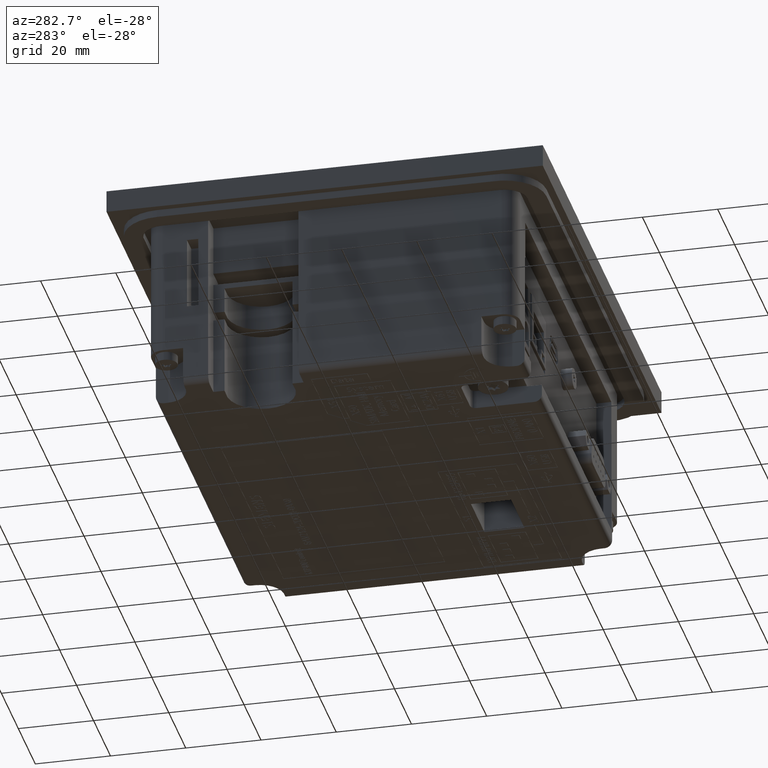
[diagram: clean part render]
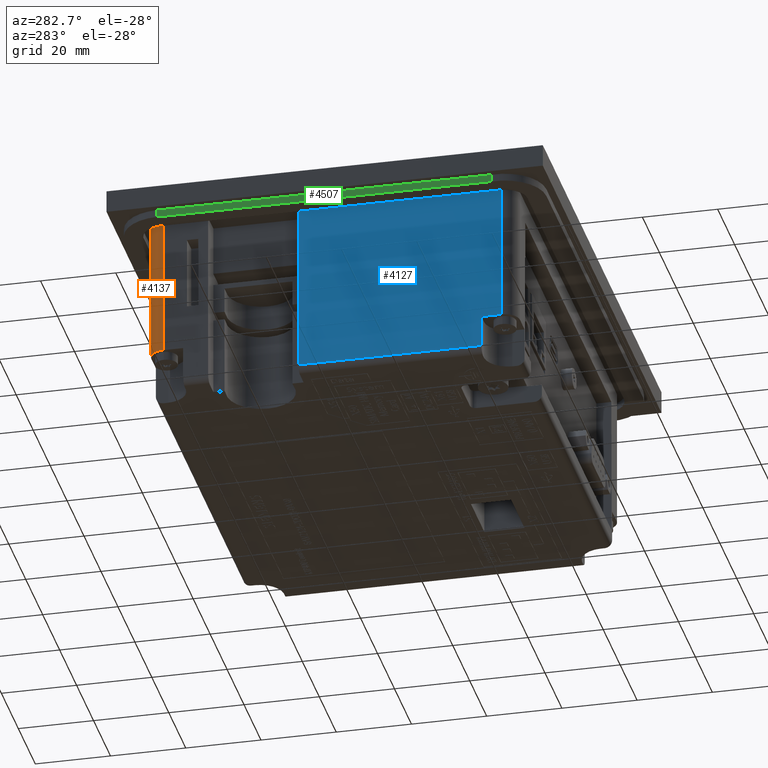
[diagram: same view with three faces highlighted in distinct colors, each labeled with its STEP entity id]
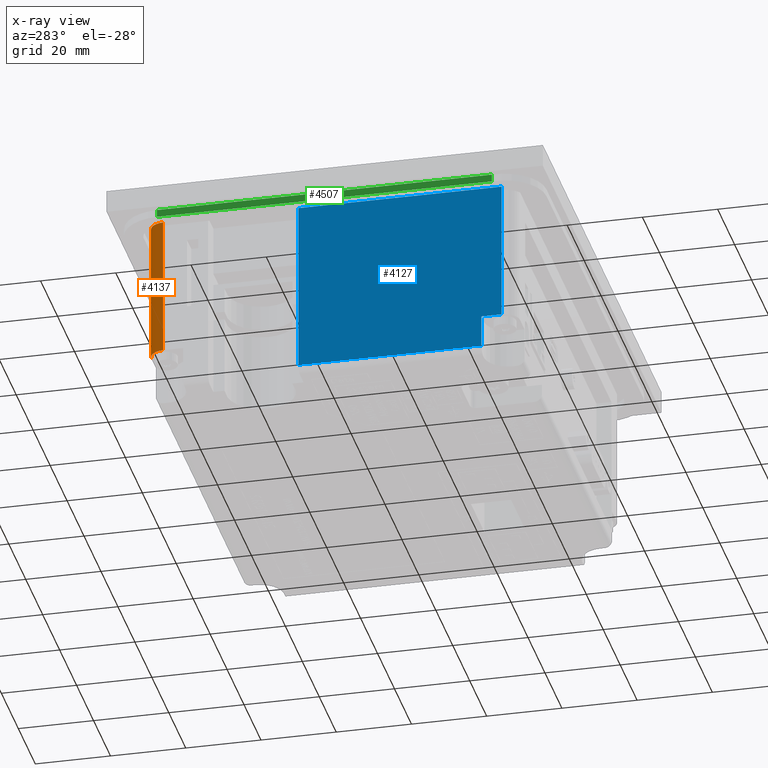
[diagram: x-ray of the same camera — body ghosted, the three highlighted faces saturated]
A machine part, auxiliary view with three faces highlighted in distinct colors.
The next image is the same camera in x-ray (body ghosted, the three faces saturated) — at least one of them is partly hidden behind the body in this view.
Their STEP definitions:

[orange] entity #4137 — the highlighted cylindrical surface (edge-blend (fillet) strip) has radius 4 mm, axis along (0, 0, 1).
#118=CYLINDRICAL_SURFACE('',#44082,4.);
#690=CIRCLE('',#44080,4.);
#691=CIRCLE('',#44081,4.);
#4137=ADVANCED_FACE('',(#8464),#118,.T.);
#8464=FACE_OUTER_BOUND('',#10647,.T.);
#10647=EDGE_LOOP('',(#13586,#13587,#13588,#13589));
#13586=ORIENTED_EDGE('',*,*,#28550,.F.);
#13587=ORIENTED_EDGE('',*,*,#28581,.T.);
#13588=ORIENTED_EDGE('',*,*,#28502,.T.);
#13589=ORIENTED_EDGE('',*,*,#28582,.T.);
#24650=VERTEX_POINT('',#56961);
#24651=VERTEX_POINT('',#56963);
#24695=VERTEX_POINT('',#57118);
#24696=VERTEX_POINT('',#57120);
#28502=EDGE_CURVE('',#24651,#24650,#34141,.T.);
#28550=EDGE_CURVE('',#24695,#24696,#34179,.T.);
#28581=EDGE_CURVE('',#24695,#24651,#690,.T.);
#28582=EDGE_CURVE('',#24650,#24696,#691,.T.);
#34141=LINE('',#56962,#39045);
#34179=LINE('',#57119,#39083);
#39045=VECTOR('',#46741,1.);
#39083=VECTOR('',#46799,1.);
#44080=AXIS2_PLACEMENT_3D('',#57180,#46844,#46845);
#44081=AXIS2_PLACEMENT_3D('',#57181,#46846,#46847);
#44082=AXIS2_PLACEMENT_3D('',#57182,#46848,#46849);
#46741=DIRECTION('',(0.,0.,1.));
#46799=DIRECTION('',(0.,0.,1.));
#46844=DIRECTION('',(0.,0.,1.));
#46845=DIRECTION('',(0.999999999999999,0.,0.));
#46846=DIRECTION('',(0.,0.,-1.));
#46847=DIRECTION('',(1.,0.,0.));
#46848=DIRECTION('',(0.,0.,1.));
#46849=DIRECTION('',(1.,0.,0.));
#56961=CARTESIAN_POINT('',(61.,-45.,-6.));
#56962=CARTESIAN_POINT('',(61.,-45.,-54.));
#56963=CARTESIAN_POINT('',(61.,-45.,-43.5));
#57118=CARTESIAN_POINT('',(57.,-49.,-43.5));
#57119=CARTESIAN_POINT('',(57.,-49.,-54.));
#57120=CARTESIAN_POINT('',(57.,-49.,-6.));
#57180=CARTESIAN_POINT('',(57.,-45.,-43.5));
#57181=CARTESIAN_POINT('',(57.,-45.,-6.));
#57182=CARTESIAN_POINT('',(57.,-45.,-54.));

[blue] entity #4127 — the highlighted planar face has unit normal (1, 0, 0).
#4127=ADVANCED_FACE('',(#8456),#6477,.F.);
#6477=PLANE('',#44060);
#8456=FACE_OUTER_BOUND('',#10635,.T.);
#10635=EDGE_LOOP('',(#13486,#13487,#13488,#13489,#13490,#13491));
#13486=ORIENTED_EDGE('',*,*,#28495,.T.);
#13487=ORIENTED_EDGE('',*,*,#28436,.T.);
#13488=ORIENTED_EDGE('',*,*,#28496,.T.);
#13489=ORIENTED_EDGE('',*,*,#28497,.F.);
#13490=ORIENTED_EDGE('',*,*,#28498,.F.);
#13491=ORIENTED_EDGE('',*,*,#28499,.T.);
#24600=VERTEX_POINT('',#56830);
#24601=VERTEX_POINT('',#56832);
#24644=VERTEX_POINT('',#56948);
#24645=VERTEX_POINT('',#56950);
#24646=VERTEX_POINT('',#56952);
#24647=VERTEX_POINT('',#56954);
#28436=EDGE_CURVE('',#24601,#24600,#34079,.T.);
#28495=EDGE_CURVE('',#24644,#24601,#34134,.T.);
#28496=EDGE_CURVE('',#24600,#24645,#34135,.T.);
#28497=EDGE_CURVE('',#24646,#24645,#34136,.T.);
#28498=EDGE_CURVE('',#24647,#24646,#34137,.T.);
#28499=EDGE_CURVE('',#24647,#24644,#34138,.T.);
#34079=LINE('',#56831,#38983);
#34134=LINE('',#56947,#39038);
#34135=LINE('',#56949,#39039);
#34136=LINE('',#56951,#39040);
#34137=LINE('',#56953,#39041);
#34138=LINE('',#56955,#39042);
#38983=VECTOR('',#46641,1.);
#39038=VECTOR('',#46732,1.);
#39039=VECTOR('',#46733,1.);
#39040=VECTOR('',#46734,1.);
#39041=VECTOR('',#46735,1.);
#39042=VECTOR('',#46736,1.);
#44060=AXIS2_PLACEMENT_3D('',#56956,#46737,#46738);
#46641=DIRECTION('',(0.,0.,-1.));
#46732=DIRECTION('',(0.,-1.,0.));
#46733=DIRECTION('',(0.,1.,0.));
#46734=DIRECTION('',(0.,0.,-1.));
#46735=DIRECTION('',(0.,-1.,0.));
#46736=DIRECTION('',(0.,0.,1.));
#46737=DIRECTION('',(-1.,0.,0.));
#46738=DIRECTION('',(0.,0.,1.));
#56830=CARTESIAN_POINT('',(61.,-9.,-52.));
#56831=CARTESIAN_POINT('',(61.,-9.,-24.));
#56832=CARTESIAN_POINT('',(61.,-9.00000000000001,-6.));
#56947=CARTESIAN_POINT('',(61.,45.,-6.));
#56948=CARTESIAN_POINT('',(61.,45.,-6.));
#56949=CARTESIAN_POINT('',(61.,39.6385852999172,-52.));
#56950=CARTESIAN_POINT('',(61.,39.6385852999172,-52.));
#56951=CARTESIAN_POINT('',(61.,39.6385852999172,-43.5));
#56952=CARTESIAN_POINT('',(61.,39.6385852999172,-43.5));
#56953=CARTESIAN_POINT('',(61.,45.,-43.5));
#56954=CARTESIAN_POINT('',(61.,45.,-43.5));
#56955=CARTESIAN_POINT('',(61.,45.,-54.));
#56956=CARTESIAN_POINT('',(61.,45.,-54.));

[green] entity #4507 — the highlighted planar face has unit normal (-1, 0, 0).
#4507=ADVANCED_FACE('',(#8809),#6756,.T.);
#6756=PLANE('',#44619);
#8809=FACE_OUTER_BOUND('',#11062,.T.);
#11062=EDGE_LOOP('',(#15357,#15358,#15359,#15360));
#15357=ORIENTED_EDGE('',*,*,#29398,.F.);
#15358=ORIENTED_EDGE('',*,*,#29397,.F.);
#15359=ORIENTED_EDGE('',*,*,#29399,.T.);
#15360=ORIENTED_EDGE('',*,*,#29377,.T.);
#25215=VERTEX_POINT('',#59028);
#25217=VERTEX_POINT('',#59031);
#25229=VERTEX_POINT('',#59067);
#25230=VERTEX_POINT('',#59069);
#29377=EDGE_CURVE('',#25217,#25215,#34832,.T.);
#29397=EDGE_CURVE('',#25230,#25229,#34845,.T.);
#29398=EDGE_CURVE('',#25229,#25215,#34846,.T.);
#29399=EDGE_CURVE('',#25230,#25217,#34847,.T.);
#34832=LINE('',#59030,#39740);
#34845=LINE('',#59070,#39753);
#34846=LINE('',#59072,#39754);
#34847=LINE('',#59073,#39755);
#39740=VECTOR('',#48524,1.);
#39753=VECTOR('',#48563,1.);
#39754=VECTOR('',#48566,1.);
#39755=VECTOR('',#48567,1.);
#44619=AXIS2_PLACEMENT_3D('',#59074,#48568,#48569);
#48524=DIRECTION('',(0.,0.,1.));
#48563=DIRECTION('',(0.,0.,1.));
#48566=DIRECTION('',(0.,1.,0.));
#48567=DIRECTION('',(0.,1.,0.));
#48568=DIRECTION('',(1.,0.,0.));
#48569=DIRECTION('',(0.,0.,-1.));
#59028=CARTESIAN_POINT('',(68.0419234680585,44.0012176678878,-6.));
#59030=CARTESIAN_POINT('',(68.0419234680585,44.0012176678878,-8.));
#59031=CARTESIAN_POINT('',(68.0419234680585,44.0012176678878,-8.));
#59067=CARTESIAN_POINT('',(68.0419234680584,-45.0000128056001,-6.));
#59069=CARTESIAN_POINT('',(68.0419234680584,-45.0000128056001,-8.));
#59070=CARTESIAN_POINT('',(68.0419234680584,-45.0000128056001,-8.));
#59072=CARTESIAN_POINT('',(68.0419234680584,-45.0000128056001,-6.));
#59073=CARTESIAN_POINT('',(68.0419234680584,-45.0000128056001,-8.));
#59074=CARTESIAN_POINT('',(68.0419234680584,-45.0000128056001,-8.));